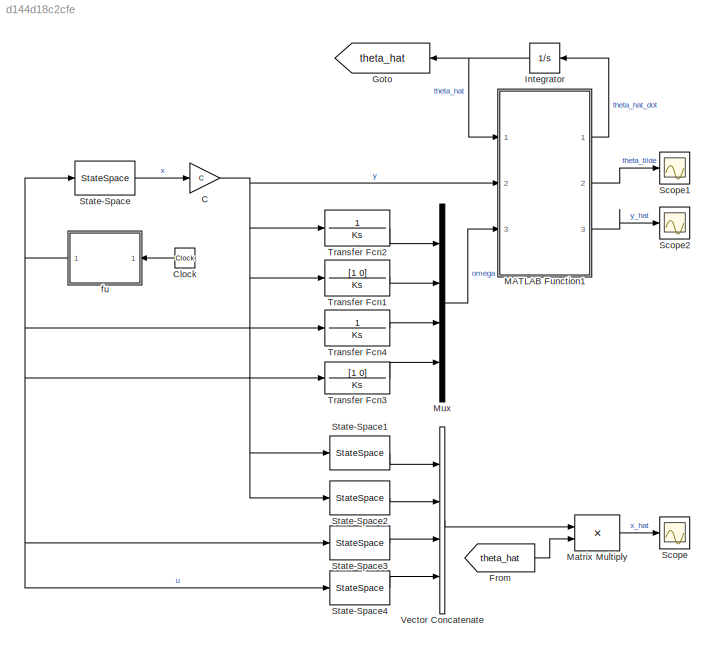
MODEL slx_d144d18c2cfe
KIND model
CONFIG AbsTol = auto
CONFIG EnableMultiTasking = off
CONFIG FixedStep = auto
CONFIG MaxStep = auto
CONFIG MinStep = auto
CONFIG RelTol = 1e-3
CONFIG SampleTimeConstraint = Unconstrained
CONFIG SolverName = VariableStepAuto
CONFIG StartTime = 0.0
CONFIG StopTime = 10.0
BLOCK [Gain] C
  Gain = C
  Multiplication = Matrix(K*u)
BLOCK [Clock] Clock
  NameLocation = top
BLOCK [From] From
  GotoTag = theta_hat
BLOCK [Goto] Goto
  GotoTag = theta_hat
  NameLocation = top
BLOCK [Integrator] Integrator
  InitialCondition = [0;0;0;0]
  NameLocation = top
  Ports = [1, 1]
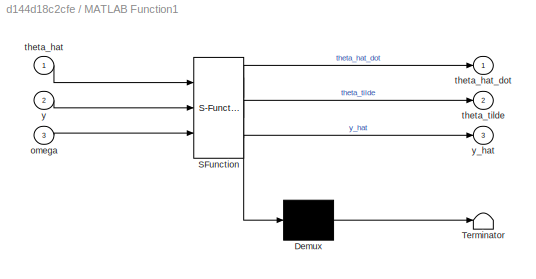
BLOCK [SubSystem] MATLAB Function1
  ErrorFcn = Stateflow.Translate.translate
  PermitHierarchicalResolution = ExplicitOnly
  Ports = [3, 3]
  RequestExecContextInheritance = off
  SFBlockType = MATLAB Function
  TreatAsAtomicUnit = on
BLOCK [Demux] MATLAB Function1/ Demux 
  Outputs = 1
  Ports = [1, 1]
BLOCK [S-Function] MATLAB Function1/ SFunction 
  EnableBusSupport = off
  FunctionName = sf_sfun
  Parameters = gamma,theta
  PortCounts = [3 4]
  Ports = [3, 4]
  SFcnIsStateOwnerBlock = off
  SFunctionDeploymentMode = off
  Tag = Stateflow S-Function 1
BLOCK [Terminator] MATLAB Function1/ Terminator 
BLOCK [Inport] MATLAB Function1/omega
  Port = 3
BLOCK [Inport] MATLAB Function1/theta_hat
BLOCK [Outport] MATLAB Function1/theta_hat_dot
BLOCK [Outport] MATLAB Function1/theta_tilde
  Port = 2
BLOCK [Inport] MATLAB Function1/y
  Port = 2
BLOCK [Outport] MATLAB Function1/y_hat
  Port = 3
BLOCK [Product] Matrix Multiply
  Multiplication = Matrix(*)
  Ports = [2, 1]
BLOCK [Mux] Mux
  DisplayOption = bar
  Ports = [4, 1]
BLOCK [Scope] Scope
  Floating = off
  NumInputPorts = 1
  Ports = [1]
  ScopeSpecificationString = Simulink.scopes.TimeScopeBlockCfg('CurrentConfiguration', extmgr.ConfigurationSet(extmgr.Configuration('Core','General UI',true),extmgr.Configuration('Core','Source UI',true),extmgr.Configuration('Sources','WiredSimulink',true),extmgr.Configuration('Visuals','Time Domain',true,'SerializedDisplays',{struct('MinYLimReal','-3.73097','MaxYLimReal','2.47652','YLabelReal','','MinYLimMag','0.00000','MaxY...<+1337ch>
BLOCK [Scope] Scope1
  Floating = off
  NumInputPorts = 1
  Ports = [1]
  ScopeSpecificationString = Simulink.scopes.TimeScopeBlockCfg('CurrentConfiguration', extmgr.ConfigurationSet(extmgr.Configuration('Core','General UI',true),extmgr.Configuration('Core','Source UI',true),extmgr.Configuration('Sources','WiredSimulink',true,'DataLoggingVariableName','ScopeData1'),extmgr.Configuration('Visuals','Time Domain',true,'SerializedDisplays',{struct('MinYLimReal','-11.43802','MaxYLimReal','11.1532','YLa...<+1921ch>
BLOCK [Scope] Scope2
  Floating = off
  NumInputPorts = 1
  Ports = [1]
  ScopeSpecificationString = Simulink.scopes.TimeScopeBlockCfg('CurrentConfiguration', extmgr.ConfigurationSet(extmgr.Configuration('Core','General UI',true),extmgr.Configuration('Core','Source UI',true),extmgr.Configuration('Sources','WiredSimulink',true,'DataLoggingVariableName','ScopeData2'),extmgr.Configuration('Visuals','Time Domain',true,'SerializedDisplays',{struct('MinYLimReal','-3.72994','MaxYLimReal','2.46729','YLab...<+1389ch>
BLOCK [StateSpace] State-Space
  A = A
  B = b
  C = eye(2)
  D = [0;0]
  InitialCondition = x_0
  Ports = [1, 1]
BLOCK [StateSpace] State-Space1
  A = A_0
  B = [0;1]
  C = eye(2)
  D = [0; 0]
  InitialCondition = 0
  Ports = [1, 1]
BLOCK [StateSpace] State-Space2
  A = A_0
  B = [1;0]
  C = eye(2)
  D = [0; 0]
  InitialCondition = 0
  Ports = [1, 1]
BLOCK [StateSpace] State-Space3
  A = A_0
  B = [0;1]
  C = eye(2)
  D = [0; 0]
  InitialCondition = 0
  Ports = [1, 1]
BLOCK [StateSpace] State-Space4
  A = A_0
  B = [1;0]
  C = eye(2)
  D = [0; 0]
  InitialCondition = 0
  Ports = [1, 1]
BLOCK [TransferFcn] Transfer Fcn1
  Denominator = Ks
  Numerator = [1 0]
BLOCK [TransferFcn] Transfer Fcn2
  Denominator = Ks
  Numerator = 1
BLOCK [TransferFcn] Transfer Fcn3
  Denominator = Ks
  Numerator = [1 0]
BLOCK [TransferFcn] Transfer Fcn4
  Denominator = Ks
  Numerator = 1
BLOCK [Concatenate] Vector Concatenate
  ConcatenateDimension = 2
  Mode = Multidimensional array
  NumInputs = 4
  Ports = [4, 1]
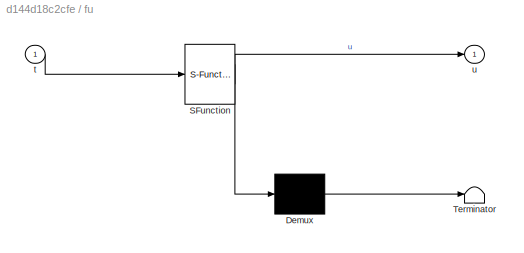
BLOCK [SubSystem] fu
  ErrorFcn = Stateflow.Translate.translate
  NameLocation = top
  PermitHierarchicalResolution = ExplicitOnly
  Ports = [1, 1]
  RequestExecContextInheritance = off
  SFBlockType = MATLAB Function
  TreatAsAtomicUnit = on
BLOCK [Demux] fu/ Demux 
  Outputs = 1
  Ports = [1, 1]
BLOCK [S-Function] fu/ SFunction 
  EnableBusSupport = off
  FunctionName = sf_sfun
  PortCounts = [1 2]
  Ports = [1, 2]
  SFcnIsStateOwnerBlock = off
  SFunctionDeploymentMode = off
  Tag = Stateflow S-Function 2
BLOCK [Terminator] fu/ Terminator 
BLOCK [Inport] fu/t
BLOCK [Outport] fu/u
NET C:1 -> MATLAB Function1:2, State-Space1:1, State-Space2:1, Transfer Fcn1:1, Transfer Fcn2:1
LINE Clock:1 -> fu:1
LINE From:1 -> Matrix Multiply:2
NET Integrator:1 -> Goto:1, MATLAB Function1:1
LINE MATLAB Function1:1 -> Integrator:1
LINE MATLAB Function1:2 -> Scope1:1
LINE MATLAB Function1:3 -> Scope2:1
LINE Matrix Multiply:1 -> Scope:1
LINE Mux:1 -> MATLAB Function1:3
LINE State-Space1:1 -> Vector Concatenate:1
LINE State-Space2:1 -> Vector Concatenate:2
LINE State-Space3:1 -> Vector Concatenate:3
LINE State-Space4:1 -> Vector Concatenate:4
LINE State-Space:1 -> C:1
LINE Transfer Fcn1:1 -> Mux:2
LINE Transfer Fcn2:1 -> Mux:1
LINE Transfer Fcn3:1 -> Mux:4
LINE Transfer Fcn4:1 -> Mux:3
LINE Vector Concatenate:1 -> Matrix Multiply:1
NET fu:1 -> State-Space3:1, State-Space4:1, State-Space:1, Transfer Fcn3:1, Transfer Fcn4:1
note: NET lines group one-source signal fan-out (src -> all destinations, sorted); 1:1 wires keep LINE
CHART MATLAB Function1 states=1 transitions=1
  STATE_LABEL 'eML_blk_kernel()'
  STATE_LABEL "SCRIPT:\nfunction [theta_hat_dot, theta_tilde, y_hat]  = fcn(theta_hat, y, omega, gamma, theta)\n\ny_hat = theta_hat'*omega;\nepsilon = y - y_hat;\ntheta_hat_dot = gamma*omega*epsilon;\ntheta_tilde = theta - theta_hat;"
CHART fu states=1 transitions=1
  STATE_LABEL 'eML_blk_kernel()'
  STATE_LABEL 'SCRIPT:\nfunction u = fu(t)\nu = sin(t)+0.5*cos(2*t);\n'
CHART  states=0 transitions=0
CHART  states=0 transitions=0
